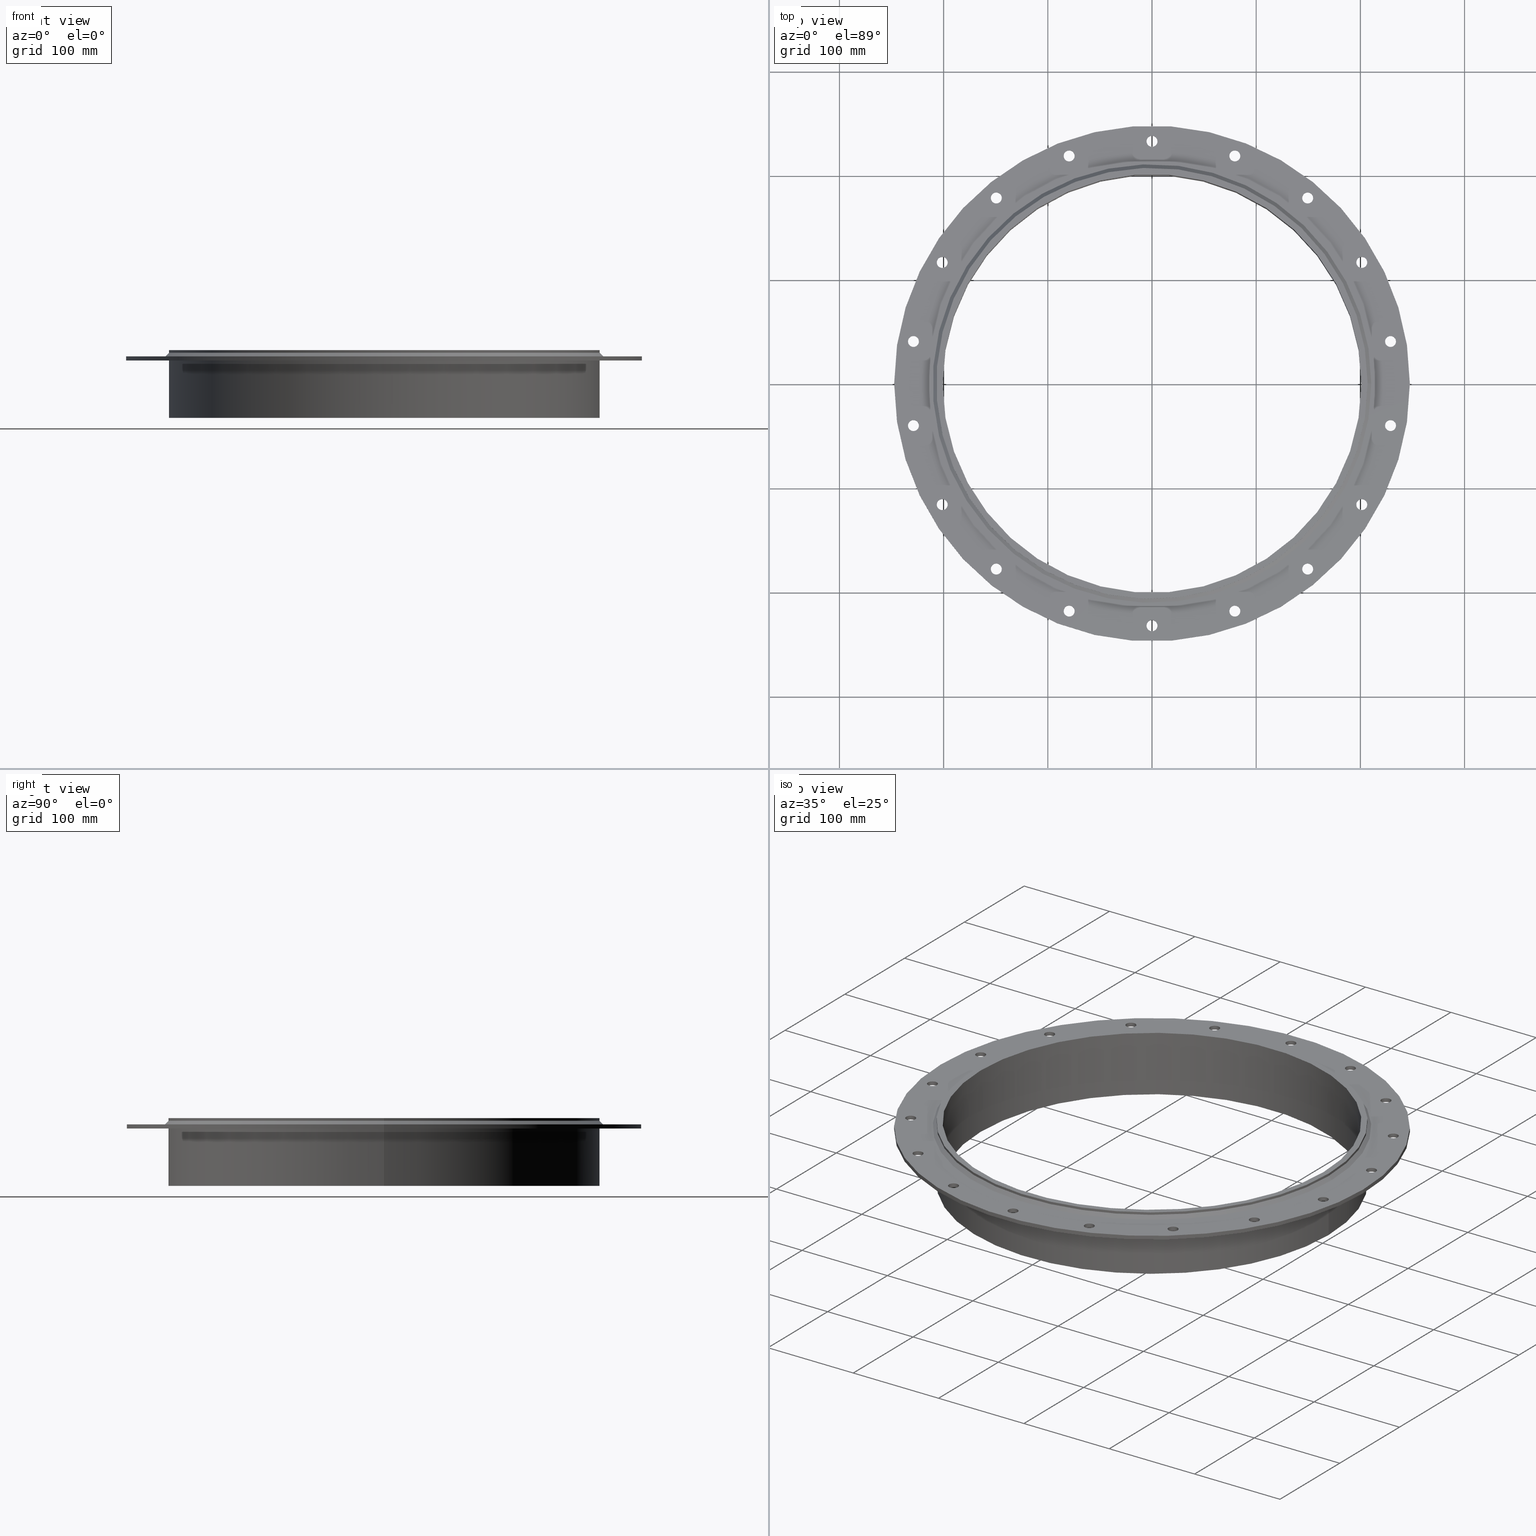
[diagram: canonical four-view strip — front | top / right | iso, engineering-drawing reading convention]
A machine part, canonical four-view strip (front | top / right | iso — engineering-drawing reading convention). The complete STEP part file that produces these views, byte-faithful:
ISO-10303-21;
HEADER;
/****************************************************************
 * Generated by software with PDElib inside                    *
 * PDElib Version v51a, created Wed 11/30/2011                  *
 * ITI Transcendata (http://www.transcendata.com/)              *
 ****************************************************************/
FILE_DESCRIPTION((''),'2;1');
FILE_NAME('C:\\Users\\se-mareng\\Desktop\\RTD\\SLF_\\step\\SLFRS400.stp','2017-02-08T07:43:10',('se-mareng'),(''),'Autodesk Inventor 2013','Autodesk Inventor 2013','');
FILE_SCHEMA(('AUTOMOTIVE_DESIGN { 1 0 10303 214 1 1 1 1 }'));
ENDSEC;
DATA;
#5=APPLICATION_CONTEXT('automotive design');
#6=APPLICATION_PROTOCOL_DEFINITION('International Standard','automotive_design',2001,#5);
#7=PRODUCT_CONTEXT('',#5,'mechanical');
#8=PRODUCT('SLFRS400_old','SLFRS400_old',$,(#7));
#9=PRODUCT_RELATED_PRODUCT_CATEGORY('part',$,(#8));
#10=PRODUCT_DEFINITION_FORMATION('',$,#8);
#11=PRODUCT_DEFINITION_CONTEXT('part definition',#5,'design');
#12=PRODUCT_DEFINITION('',$,#10,#11);
#18=(NAMED_UNIT(*)PLANE_ANGLE_UNIT()SI_UNIT($,.RADIAN.));
#19=DIMENSIONAL_EXPONENTS(0.0,0.0,0.0,0.0,0.0,0.0,0.0);
#20=PLANE_ANGLE_MEASURE_WITH_UNIT(PLANE_ANGLE_MEASURE(0.0174532925),#18);
#24=(CONVERSION_BASED_UNIT('DEGREE',#20)NAMED_UNIT(#19)PLANE_ANGLE_UNIT());
#28=(NAMED_UNIT(*)SI_UNIT($,.STERADIAN.)SOLID_ANGLE_UNIT());
#32=(LENGTH_UNIT()NAMED_UNIT(*)SI_UNIT(.MILLI.,.METRE.));
#34=UNCERTAINTY_MEASURE_WITH_UNIT(LENGTH_MEASURE(0.01),#32,'DISTANCE_ACCURACY_VALUE','');
#36=(GEOMETRIC_REPRESENTATION_CONTEXT(3)GLOBAL_UNCERTAINTY_ASSIGNED_CONTEXT((#34))GLOBAL_UNIT_ASSIGNED_CONTEXT((#24,#28,#32))REPRESENTATION_CONTEXT('None','None'));
#37=AXIS2_PLACEMENT_3D('',#38,#39,#40);
#38=CARTESIAN_POINT('',(0.0,0.0,0.0));
#39=DIRECTION('',(0.0,0.0,1.0));
#40=DIRECTION('',(1.0,0.0,0.0));
#41=SHAPE_REPRESENTATION('',(#37),#36);
#42=PRODUCT_DEFINITION_SHAPE('','',#12);
#43=SHAPE_DEFINITION_REPRESENTATION(#42,#41);
#49=(NAMED_UNIT(*)PLANE_ANGLE_UNIT()SI_UNIT($,.RADIAN.));
#50=DIMENSIONAL_EXPONENTS(0.0,0.0,0.0,0.0,0.0,0.0,0.0);
#51=PLANE_ANGLE_MEASURE_WITH_UNIT(PLANE_ANGLE_MEASURE(0.0174532925),#49);
#55=(CONVERSION_BASED_UNIT('DEGREE',#51)NAMED_UNIT(#50)PLANE_ANGLE_UNIT());
#59=(NAMED_UNIT(*)SI_UNIT($,.STERADIAN.)SOLID_ANGLE_UNIT());
#63=(LENGTH_UNIT()NAMED_UNIT(*)SI_UNIT(.MILLI.,.METRE.));
#65=UNCERTAINTY_MEASURE_WITH_UNIT(LENGTH_MEASURE(0.000001),#63,'DISTANCE_ACCURACY_VALUE','');
#67=(GEOMETRIC_REPRESENTATION_CONTEXT(3)GLOBAL_UNCERTAINTY_ASSIGNED_CONTEXT((#65))GLOBAL_UNIT_ASSIGNED_CONTEXT((#55,#59,#63))REPRESENTATION_CONTEXT('','3D'));
#68=CARTESIAN_POINT('',(-149.44811925212042,178.10533302516245,-709.04694011139827));
#69=DIRECTION('',(0.0,0.0,1.0));
#70=DIRECTION('',(1.0,0.0,0.0));
#71=AXIS2_PLACEMENT_3D('',#68,#69,#70);
#72=CYLINDRICAL_SURFACE('',#71,5.25);
#73=CARTESIAN_POINT('',(-154.69811925212045,178.10533302516245,-10.0));
#74=VERTEX_POINT('',#73);
#75=CARTESIAN_POINT('',(-149.44811925212042,178.10533302516245,-10.0));
#76=DIRECTION('',(0.0,0.0,1.0));
#77=DIRECTION('',(1.0,0.0,0.0));
#78=AXIS2_PLACEMENT_3D('',#75,#76,#77);
#79=CIRCLE('',#78,5.25);
#80=EDGE_CURVE('',#74,#74,#79,.T.);
#81=ORIENTED_EDGE('',*,*,#80,.F.);
#82=EDGE_LOOP('',(#81));
#83=FACE_OUTER_BOUND('',#82,.T.);
#84=CARTESIAN_POINT('',(-144.19811925212042,178.10533302516245,-6.000000000000002));
#85=VERTEX_POINT('',#84);
#86=CARTESIAN_POINT('',(-149.44811925212042,178.10533302516245,-5.999999999999943));
#87=DIRECTION('',(0.0,0.0,-1.0));
#88=DIRECTION('',(1.0,0.0,0.0));
#89=AXIS2_PLACEMENT_3D('',#86,#87,#88);
#90=CIRCLE('',#89,5.25);
#91=EDGE_CURVE('',#85,#85,#90,.T.);
#92=ORIENTED_EDGE('',*,*,#91,.F.);
#93=EDGE_LOOP('',(#92));
#94=FACE_BOUND('',#93,.T.);
#95=ADVANCED_FACE('',(#83,#94),#72,.F.);
#96=CARTESIAN_POINT('',(-228.96780257533837,40.373201307561331,-709.04694011139827));
#97=DIRECTION('',(0.0,0.0,1.0));
#98=DIRECTION('',(1.0,0.0,0.0));
#99=AXIS2_PLACEMENT_3D('',#96,#97,#98);
#100=CYLINDRICAL_SURFACE('',#99,5.25);
#101=CARTESIAN_POINT('',(-234.21780257533837,40.373201307561331,-10.0));
#102=VERTEX_POINT('',#101);
#103=CARTESIAN_POINT('',(-228.96780257533837,40.373201307561331,-10.0));
#104=DIRECTION('',(0.0,0.0,1.0));
#105=DIRECTION('',(1.0,0.0,0.0));
#106=AXIS2_PLACEMENT_3D('',#103,#104,#105);
#107=CIRCLE('',#106,5.25);
#108=EDGE_CURVE('',#102,#102,#107,.T.);
#109=ORIENTED_EDGE('',*,*,#108,.F.);
#110=EDGE_LOOP('',(#109));
#111=FACE_OUTER_BOUND('',#110,.T.);
#112=CARTESIAN_POINT('',(-223.7178025753384,40.373201307561331,-6.000000000000002));
#113=VERTEX_POINT('',#112);
#114=CARTESIAN_POINT('',(-228.96780257533837,40.373201307561331,-5.999999999999943));
#115=DIRECTION('',(0.0,0.0,-1.0));
#116=DIRECTION('',(1.0,0.0,0.0));
#117=AXIS2_PLACEMENT_3D('',#114,#115,#116);
#118=CIRCLE('',#117,5.25);
#119=EDGE_CURVE('',#113,#113,#118,.T.);
#120=ORIENTED_EDGE('',*,*,#119,.F.);
#121=EDGE_LOOP('',(#120));
#122=FACE_BOUND('',#121,.T.);
#123=ADVANCED_FACE('',(#111,#122),#100,.F.);
#124=CARTESIAN_POINT('',(-201.3509063798821,-116.24999999999997,-709.04694011139827));
#125=DIRECTION('',(0.0,0.0,1.0));
#126=DIRECTION('',(1.0,0.0,0.0));
#127=AXIS2_PLACEMENT_3D('',#124,#125,#126);
#128=CYLINDRICAL_SURFACE('',#127,5.25);
#129=CARTESIAN_POINT('',(-206.60090637988208,-116.24999999999997,-10.0));
#130=VERTEX_POINT('',#129);
#131=CARTESIAN_POINT('',(-201.3509063798821,-116.24999999999997,-10.0));
#132=DIRECTION('',(0.0,0.0,1.0));
#133=DIRECTION('',(1.0,0.0,0.0));
#134=AXIS2_PLACEMENT_3D('',#131,#132,#133);
#135=CIRCLE('',#134,5.25);
#136=EDGE_CURVE('',#130,#130,#135,.T.);
#137=ORIENTED_EDGE('',*,*,#136,.F.);
#138=EDGE_LOOP('',(#137));
#139=FACE_OUTER_BOUND('',#138,.T.);
#140=CARTESIAN_POINT('',(-196.1009063798821,-116.24999999999997,-6.000000000000002));
#141=VERTEX_POINT('',#140);
#142=CARTESIAN_POINT('',(-201.3509063798821,-116.24999999999997,-5.999999999999943));
#143=DIRECTION('',(0.0,0.0,-1.0));
#144=DIRECTION('',(1.0,0.0,0.0));
#145=AXIS2_PLACEMENT_3D('',#142,#143,#144);
#146=CIRCLE('',#145,5.25);
#147=EDGE_CURVE('',#141,#141,#146,.T.);
#148=ORIENTED_EDGE('',*,*,#147,.F.);
#149=EDGE_LOOP('',(#148));
#150=FACE_BOUND('',#149,.T.);
#151=ADVANCED_FACE('',(#139,#150),#128,.F.);
#152=CARTESIAN_POINT('',(-79.519683323218061,-218.47853433272365,-709.04694011139827));
#153=DIRECTION('',(0.0,0.0,1.0));
#154=DIRECTION('',(1.0,0.0,0.0));
#155=AXIS2_PLACEMENT_3D('',#152,#153,#154);
#156=CYLINDRICAL_SURFACE('',#155,5.25);
#157=CARTESIAN_POINT('',(-84.769683323218061,-218.47853433272365,-10.0));
#158=VERTEX_POINT('',#157);
#159=CARTESIAN_POINT('',(-79.519683323218061,-218.47853433272365,-10.0));
#160=DIRECTION('',(0.0,0.0,1.0));
#161=DIRECTION('',(1.0,0.0,0.0));
#162=AXIS2_PLACEMENT_3D('',#159,#160,#161);
#163=CIRCLE('',#162,5.25);
#164=EDGE_CURVE('',#158,#158,#163,.T.);
#165=ORIENTED_EDGE('',*,*,#164,.F.);
#166=EDGE_LOOP('',(#165));
#167=FACE_OUTER_BOUND('',#166,.T.);
#168=CARTESIAN_POINT('',(-74.269683323218061,-218.47853433272365,-6.000000000000002));
#169=VERTEX_POINT('',#168);
#170=CARTESIAN_POINT('',(-79.519683323218061,-218.47853433272365,-5.999999999999943));
#171=DIRECTION('',(0.0,0.0,-1.0));
#172=DIRECTION('',(1.0,0.0,0.0));
#173=AXIS2_PLACEMENT_3D('',#170,#171,#172);
#174=CIRCLE('',#173,5.25);
#175=EDGE_CURVE('',#169,#169,#174,.T.);
#176=ORIENTED_EDGE('',*,*,#175,.F.);
#177=EDGE_LOOP('',(#176));
#178=FACE_BOUND('',#177,.T.);
#179=ADVANCED_FACE('',(#167,#178),#156,.F.);
#180=CARTESIAN_POINT('',(79.519683323217947,-218.47853433272365,-709.04694011139827));
#181=DIRECTION('',(0.0,0.0,1.0));
#182=DIRECTION('',(1.0,0.0,0.0));
#183=AXIS2_PLACEMENT_3D('',#180,#181,#182);
#184=CYLINDRICAL_SURFACE('',#183,5.25);
#185=CARTESIAN_POINT('',(74.269683323217947,-218.47853433272365,-10.0));
#186=VERTEX_POINT('',#185);
#187=CARTESIAN_POINT('',(79.519683323217947,-218.47853433272365,-10.0));
#188=DIRECTION('',(0.0,0.0,1.0));
#189=DIRECTION('',(1.0,0.0,0.0));
#190=AXIS2_PLACEMENT_3D('',#187,#188,#189);
#191=CIRCLE('',#190,5.25);
#192=EDGE_CURVE('',#186,#186,#191,.T.);
#193=ORIENTED_EDGE('',*,*,#192,.F.);
#194=EDGE_LOOP('',(#193));
#195=FACE_OUTER_BOUND('',#194,.T.);
#196=CARTESIAN_POINT('',(84.769683323217947,-218.47853433272365,-6.000000000000002));
#197=VERTEX_POINT('',#196);
#198=CARTESIAN_POINT('',(79.519683323217947,-218.47853433272365,-5.999999999999943));
#199=DIRECTION('',(0.0,0.0,-1.0));
#200=DIRECTION('',(1.0,0.0,0.0));
#201=AXIS2_PLACEMENT_3D('',#198,#199,#200);
#202=CIRCLE('',#201,5.25);
#203=EDGE_CURVE('',#197,#197,#202,.T.);
#204=ORIENTED_EDGE('',*,*,#203,.F.);
#205=EDGE_LOOP('',(#204));
#206=FACE_BOUND('',#205,.T.);
#207=ADVANCED_FACE('',(#195,#206),#184,.F.);
#208=CARTESIAN_POINT('',(201.35090637988202,-116.25000000000014,-709.04694011139827));
#209=DIRECTION('',(0.0,0.0,1.0));
#210=DIRECTION('',(1.0,0.0,0.0));
#211=AXIS2_PLACEMENT_3D('',#208,#209,#210);
#212=CYLINDRICAL_SURFACE('',#211,5.25);
#213=CARTESIAN_POINT('',(196.10090637988205,-116.25000000000014,-10.0));
#214=VERTEX_POINT('',#213);
#215=CARTESIAN_POINT('',(201.35090637988202,-116.25000000000014,-10.0));
#216=DIRECTION('',(0.0,0.0,1.0));
#217=DIRECTION('',(1.0,0.0,0.0));
#218=AXIS2_PLACEMENT_3D('',#215,#216,#217);
#219=CIRCLE('',#218,5.25);
#220=EDGE_CURVE('',#214,#214,#219,.T.);
#221=ORIENTED_EDGE('',*,*,#220,.F.);
#222=EDGE_LOOP('',(#221));
#223=FACE_OUTER_BOUND('',#222,.T.);
#224=CARTESIAN_POINT('',(206.60090637988202,-116.25000000000014,-6.000000000000002));
#225=VERTEX_POINT('',#224);
#226=CARTESIAN_POINT('',(201.35090637988202,-116.25000000000014,-5.999999999999943));
#227=DIRECTION('',(0.0,0.0,-1.0));
#228=DIRECTION('',(1.0,0.0,0.0));
#229=AXIS2_PLACEMENT_3D('',#226,#227,#228);
#230=CIRCLE('',#229,5.25);
#231=EDGE_CURVE('',#225,#225,#230,.T.);
#232=ORIENTED_EDGE('',*,*,#231,.F.);
#233=EDGE_LOOP('',(#232));
#234=FACE_BOUND('',#233,.T.);
#235=ADVANCED_FACE('',(#223,#234),#212,.F.);
#236=CARTESIAN_POINT('',(228.96780257533837,40.373201307561246,-709.04694011139827));
#237=DIRECTION('',(0.0,0.0,1.0));
#238=DIRECTION('',(1.0,0.0,0.0));
#239=AXIS2_PLACEMENT_3D('',#236,#237,#238);
#240=CYLINDRICAL_SURFACE('',#239,5.25);
#241=CARTESIAN_POINT('',(223.7178025753384,40.373201307561246,-10.0));
#242=VERTEX_POINT('',#241);
#243=CARTESIAN_POINT('',(228.96780257533837,40.373201307561246,-10.0));
#244=DIRECTION('',(0.0,0.0,1.0));
#245=DIRECTION('',(1.0,0.0,0.0));
#246=AXIS2_PLACEMENT_3D('',#243,#244,#245);
#247=CIRCLE('',#246,5.25);
#248=EDGE_CURVE('',#242,#242,#247,.T.);
#249=ORIENTED_EDGE('',*,*,#248,.F.);
#250=EDGE_LOOP('',(#249));
#251=FACE_OUTER_BOUND('',#250,.T.);
#252=CARTESIAN_POINT('',(234.21780257533837,40.373201307561246,-6.000000000000002));
#253=VERTEX_POINT('',#252);
#254=CARTESIAN_POINT('',(228.96780257533837,40.373201307561246,-5.999999999999943));
#255=DIRECTION('',(0.0,0.0,-1.0));
#256=DIRECTION('',(1.0,0.0,0.0));
#257=AXIS2_PLACEMENT_3D('',#254,#255,#256);
#258=CIRCLE('',#257,5.25);
#259=EDGE_CURVE('',#253,#253,#258,.T.);
#260=ORIENTED_EDGE('',*,*,#259,.F.);
#261=EDGE_LOOP('',(#260));
#262=FACE_BOUND('',#261,.T.);
#263=ADVANCED_FACE('',(#251,#262),#240,.F.);
#264=CARTESIAN_POINT('',(149.44811925212042,178.10533302516234,-709.04694011139827));
#265=DIRECTION('',(0.0,0.0,1.0));
#266=DIRECTION('',(1.0,0.0,0.0));
#267=AXIS2_PLACEMENT_3D('',#264,#265,#266);
#268=CYLINDRICAL_SURFACE('',#267,5.25);
#269=CARTESIAN_POINT('',(144.19811925212042,178.10533302516234,-10.0));
#270=VERTEX_POINT('',#269);
#271=CARTESIAN_POINT('',(149.44811925212042,178.10533302516234,-10.0));
#272=DIRECTION('',(0.0,0.0,1.0));
#273=DIRECTION('',(1.0,0.0,0.0));
#274=AXIS2_PLACEMENT_3D('',#271,#272,#273);
#275=CIRCLE('',#274,5.25);
#276=EDGE_CURVE('',#270,#270,#275,.T.);
#277=ORIENTED_EDGE('',*,*,#276,.F.);
#278=EDGE_LOOP('',(#277));
#279=FACE_OUTER_BOUND('',#278,.T.);
#280=CARTESIAN_POINT('',(154.69811925212045,178.10533302516234,-6.000000000000002));
#281=VERTEX_POINT('',#280);
#282=CARTESIAN_POINT('',(149.44811925212042,178.10533302516234,-5.999999999999943));
#283=DIRECTION('',(0.0,0.0,-1.0));
#284=DIRECTION('',(1.0,0.0,0.0));
#285=AXIS2_PLACEMENT_3D('',#282,#283,#284);
#286=CIRCLE('',#285,5.25);
#287=EDGE_CURVE('',#281,#281,#286,.T.);
#288=ORIENTED_EDGE('',*,*,#287,.F.);
#289=EDGE_LOOP('',(#288));
#290=FACE_BOUND('',#289,.T.);
#291=ADVANCED_FACE('',(#279,#290),#268,.F.);
#292=CARTESIAN_POINT('',(0.0,232.5,-709.04694011139827));
#293=DIRECTION('',(0.0,0.0,1.0));
#294=DIRECTION('',(1.0,0.0,0.0));
#295=AXIS2_PLACEMENT_3D('',#292,#293,#294);
#296=CYLINDRICAL_SURFACE('',#295,5.25);
#297=CARTESIAN_POINT('',(-5.25,232.5,-10.0));
#298=VERTEX_POINT('',#297);
#299=CARTESIAN_POINT('',(0.0,232.5,-10.0));
#300=DIRECTION('',(0.0,0.0,1.0));
#301=DIRECTION('',(1.0,0.0,0.0));
#302=AXIS2_PLACEMENT_3D('',#299,#300,#301);
#303=CIRCLE('',#302,5.25);
#304=EDGE_CURVE('',#298,#298,#303,.T.);
#305=ORIENTED_EDGE('',*,*,#304,.F.);
#306=EDGE_LOOP('',(#305));
#307=FACE_OUTER_BOUND('',#306,.T.);
#308=CARTESIAN_POINT('',(5.25,232.5,-6.000000000000002));
#309=VERTEX_POINT('',#308);
#310=CARTESIAN_POINT('',(0.0,232.5,-5.999999999999943));
#311=DIRECTION('',(0.0,0.0,-1.0));
#312=DIRECTION('',(1.0,0.0,0.0));
#313=AXIS2_PLACEMENT_3D('',#310,#311,#312);
#314=CIRCLE('',#313,5.25);
#315=EDGE_CURVE('',#309,#309,#314,.T.);
#316=ORIENTED_EDGE('',*,*,#315,.F.);
#317=EDGE_LOOP('',(#316));
#318=FACE_BOUND('',#317,.T.);
#319=ADVANCED_FACE('',(#307,#318),#296,.F.);
#320=CARTESIAN_POINT('',(79.519683323218118,218.47853433272365,-709.04694011139827));
#321=DIRECTION('',(0.0,0.0,1.0));
#322=DIRECTION('',(1.0,0.0,0.0));
#323=AXIS2_PLACEMENT_3D('',#320,#321,#322);
#324=CYLINDRICAL_SURFACE('',#323,5.25);
#325=CARTESIAN_POINT('',(74.269683323218118,218.47853433272365,-10.0));
#326=VERTEX_POINT('',#325);
#327=CARTESIAN_POINT('',(79.519683323218118,218.47853433272365,-10.0));
#328=DIRECTION('',(0.0,0.0,1.0));
#329=DIRECTION('',(1.0,0.0,0.0));
#330=AXIS2_PLACEMENT_3D('',#327,#328,#329);
#331=CIRCLE('',#330,5.25);
#332=EDGE_CURVE('',#326,#326,#331,.T.);
#333=ORIENTED_EDGE('',*,*,#332,.F.);
#334=EDGE_LOOP('',(#333));
#335=FACE_OUTER_BOUND('',#334,.T.);
#336=CARTESIAN_POINT('',(84.769683323218118,218.47853433272365,-6.000000000000002));
#337=VERTEX_POINT('',#336);
#338=CARTESIAN_POINT('',(79.519683323218118,218.47853433272365,-5.999999999999943));
#339=DIRECTION('',(0.0,0.0,-1.0));
#340=DIRECTION('',(1.0,0.0,0.0));
#341=AXIS2_PLACEMENT_3D('',#338,#339,#340);
#342=CIRCLE('',#341,5.25);
#343=EDGE_CURVE('',#337,#337,#342,.T.);
#344=ORIENTED_EDGE('',*,*,#343,.F.);
#345=EDGE_LOOP('',(#344));
#346=FACE_BOUND('',#345,.T.);
#347=ADVANCED_FACE('',(#335,#346),#324,.F.);
#348=CARTESIAN_POINT('',(201.35090637988202,116.25000000000006,-709.04694011139827));
#349=DIRECTION('',(0.0,0.0,1.0));
#350=DIRECTION('',(1.0,0.0,0.0));
#351=AXIS2_PLACEMENT_3D('',#348,#349,#350);
#352=CYLINDRICAL_SURFACE('',#351,5.25);
#353=CARTESIAN_POINT('',(196.10090637988205,116.25000000000006,-10.0));
#354=VERTEX_POINT('',#353);
#355=CARTESIAN_POINT('',(201.35090637988202,116.25000000000006,-10.0));
#356=DIRECTION('',(0.0,0.0,1.0));
#357=DIRECTION('',(1.0,0.0,0.0));
#358=AXIS2_PLACEMENT_3D('',#355,#356,#357);
#359=CIRCLE('',#358,5.25);
#360=EDGE_CURVE('',#354,#354,#359,.T.);
#361=ORIENTED_EDGE('',*,*,#360,.F.);
#362=EDGE_LOOP('',(#361));
#363=FACE_OUTER_BOUND('',#362,.T.);
#364=CARTESIAN_POINT('',(206.60090637988202,116.25000000000006,-6.000000000000002));
#365=VERTEX_POINT('',#364);
#366=CARTESIAN_POINT('',(201.35090637988202,116.25000000000006,-5.999999999999943));
#367=DIRECTION('',(0.0,0.0,-1.0));
#368=DIRECTION('',(1.0,0.0,0.0));
#369=AXIS2_PLACEMENT_3D('',#366,#367,#368);
#370=CIRCLE('',#369,5.25);
#371=EDGE_CURVE('',#365,#365,#370,.T.);
#372=ORIENTED_EDGE('',*,*,#371,.F.);
#373=EDGE_LOOP('',(#372));
#374=FACE_BOUND('',#373,.T.);
#375=ADVANCED_FACE('',(#363,#374),#352,.F.);
#376=CARTESIAN_POINT('',(228.96780257533837,-40.373201307561295,-709.04694011139827));
#377=DIRECTION('',(0.0,0.0,1.0));
#378=DIRECTION('',(1.0,0.0,0.0));
#379=AXIS2_PLACEMENT_3D('',#376,#377,#378);
#380=CYLINDRICAL_SURFACE('',#379,5.25);
#381=CARTESIAN_POINT('',(223.7178025753384,-40.373201307561295,-10.0));
#382=VERTEX_POINT('',#381);
#383=CARTESIAN_POINT('',(228.96780257533837,-40.373201307561295,-10.0));
#384=DIRECTION('',(0.0,0.0,1.0));
#385=DIRECTION('',(1.0,0.0,0.0));
#386=AXIS2_PLACEMENT_3D('',#383,#384,#385);
#387=CIRCLE('',#386,5.25);
#388=EDGE_CURVE('',#382,#382,#387,.T.);
#389=ORIENTED_EDGE('',*,*,#388,.F.);
#390=EDGE_LOOP('',(#389));
#391=FACE_OUTER_BOUND('',#390,.T.);
#392=CARTESIAN_POINT('',(234.21780257533837,-40.373201307561295,-6.000000000000002));
#393=VERTEX_POINT('',#392);
#394=CARTESIAN_POINT('',(228.96780257533837,-40.373201307561295,-5.999999999999943));
#395=DIRECTION('',(0.0,0.0,-1.0));
#396=DIRECTION('',(1.0,0.0,0.0));
#397=AXIS2_PLACEMENT_3D('',#394,#395,#396);
#398=CIRCLE('',#397,5.25);
#399=EDGE_CURVE('',#393,#393,#398,.T.);
#400=ORIENTED_EDGE('',*,*,#399,.F.);
#401=EDGE_LOOP('',(#400));
#402=FACE_BOUND('',#401,.T.);
#403=ADVANCED_FACE('',(#391,#402),#380,.F.);
#404=CARTESIAN_POINT('',(149.44811925212042,-178.10533302516245,-709.04694011139827));
#405=DIRECTION('',(0.0,0.0,1.0));
#406=DIRECTION('',(1.0,0.0,0.0));
#407=AXIS2_PLACEMENT_3D('',#404,#405,#406);
#408=CYLINDRICAL_SURFACE('',#407,5.25);
#409=CARTESIAN_POINT('',(144.19811925212042,-178.10533302516245,-10.0));
#410=VERTEX_POINT('',#409);
#411=CARTESIAN_POINT('',(149.44811925212042,-178.10533302516245,-10.0));
#412=DIRECTION('',(0.0,0.0,1.0));
#413=DIRECTION('',(1.0,0.0,0.0));
#414=AXIS2_PLACEMENT_3D('',#411,#412,#413);
#415=CIRCLE('',#414,5.25);
#416=EDGE_CURVE('',#410,#410,#415,.T.);
#417=ORIENTED_EDGE('',*,*,#416,.F.);
#418=EDGE_LOOP('',(#417));
#419=FACE_OUTER_BOUND('',#418,.T.);
#420=CARTESIAN_POINT('',(154.69811925212045,-178.10533302516245,-6.000000000000002));
#421=VERTEX_POINT('',#420);
#422=CARTESIAN_POINT('',(149.44811925212042,-178.10533302516245,-5.999999999999943));
#423=DIRECTION('',(0.0,0.0,-1.0));
#424=DIRECTION('',(1.0,0.0,0.0));
#425=AXIS2_PLACEMENT_3D('',#422,#423,#424);
#426=CIRCLE('',#425,5.25);
#427=EDGE_CURVE('',#421,#421,#426,.T.);
#428=ORIENTED_EDGE('',*,*,#427,.F.);
#429=EDGE_LOOP('',(#428));
#430=FACE_BOUND('',#429,.T.);
#431=ADVANCED_FACE('',(#419,#430),#408,.F.);
#432=CARTESIAN_POINT('',(-2.664535E-014,-232.5,-709.04694011139827));
#433=DIRECTION('',(0.0,0.0,1.0));
#434=DIRECTION('',(1.0,0.0,0.0));
#435=AXIS2_PLACEMENT_3D('',#432,#433,#434);
#436=CYLINDRICAL_SURFACE('',#435,5.25);
#437=CARTESIAN_POINT('',(-5.250000000000027,-232.5,-10.0));
#438=VERTEX_POINT('',#437);
#439=CARTESIAN_POINT('',(-2.664535E-014,-232.5,-10.0));
#440=DIRECTION('',(0.0,0.0,1.0));
#441=DIRECTION('',(1.0,0.0,0.0));
#442=AXIS2_PLACEMENT_3D('',#439,#440,#441);
#443=CIRCLE('',#442,5.25);
#444=EDGE_CURVE('',#438,#438,#443,.T.);
#445=ORIENTED_EDGE('',*,*,#444,.F.);
#446=EDGE_LOOP('',(#445));
#447=FACE_OUTER_BOUND('',#446,.T.);
#448=CARTESIAN_POINT('',(5.249999999999973,-232.5,-6.000000000000002));
#449=VERTEX_POINT('',#448);
#450=CARTESIAN_POINT('',(-2.664535E-014,-232.5,-5.999999999999943));
#451=DIRECTION('',(0.0,0.0,-1.0));
#452=DIRECTION('',(1.0,0.0,0.0));
#453=AXIS2_PLACEMENT_3D('',#450,#451,#452);
#454=CIRCLE('',#453,5.25);
#455=EDGE_CURVE('',#449,#449,#454,.T.);
#456=ORIENTED_EDGE('',*,*,#455,.F.);
#457=EDGE_LOOP('',(#456));
#458=FACE_BOUND('',#457,.T.);
#459=ADVANCED_FACE('',(#447,#458),#436,.F.);
#460=CARTESIAN_POINT('',(-149.44811925212042,-178.10533302516237,-709.04694011139827));
#461=DIRECTION('',(0.0,0.0,1.0));
#462=DIRECTION('',(1.0,0.0,0.0));
#463=AXIS2_PLACEMENT_3D('',#460,#461,#462);
#464=CYLINDRICAL_SURFACE('',#463,5.25);
#465=CARTESIAN_POINT('',(-154.69811925212045,-178.10533302516237,-10.0));
#466=VERTEX_POINT('',#465);
#467=CARTESIAN_POINT('',(-149.44811925212042,-178.10533302516237,-10.0));
#468=DIRECTION('',(0.0,0.0,1.0));
#469=DIRECTION('',(1.0,0.0,0.0));
#470=AXIS2_PLACEMENT_3D('',#467,#468,#469);
#471=CIRCLE('',#470,5.25);
#472=EDGE_CURVE('',#466,#466,#471,.T.);
#473=ORIENTED_EDGE('',*,*,#472,.F.);
#474=EDGE_LOOP('',(#473));
#475=FACE_OUTER_BOUND('',#474,.T.);
#476=CARTESIAN_POINT('',(-144.19811925212042,-178.10533302516237,-6.000000000000002));
#477=VERTEX_POINT('',#476);
#478=CARTESIAN_POINT('',(-149.44811925212042,-178.10533302516237,-5.999999999999943));
#479=DIRECTION('',(0.0,0.0,-1.0));
#480=DIRECTION('',(1.0,0.0,0.0));
#481=AXIS2_PLACEMENT_3D('',#478,#479,#480);
#482=CIRCLE('',#481,5.25);
#483=EDGE_CURVE('',#477,#477,#482,.T.);
#484=ORIENTED_EDGE('',*,*,#483,.F.);
#485=EDGE_LOOP('',(#484));
#486=FACE_BOUND('',#485,.T.);
#487=ADVANCED_FACE('',(#475,#486),#464,.F.);
#488=CARTESIAN_POINT('',(-228.96780257533837,-40.373201307561295,-709.04694011139827));
#489=DIRECTION('',(0.0,0.0,1.0));
#490=DIRECTION('',(1.0,0.0,0.0));
#491=AXIS2_PLACEMENT_3D('',#488,#489,#490);
#492=CYLINDRICAL_SURFACE('',#491,5.25);
#493=CARTESIAN_POINT('',(-234.21780257533837,-40.373201307561295,-10.0));
#494=VERTEX_POINT('',#493);
#495=CARTESIAN_POINT('',(-228.96780257533837,-40.373201307561295,-10.0));
#496=DIRECTION('',(0.0,0.0,1.0));
#497=DIRECTION('',(1.0,0.0,0.0));
#498=AXIS2_PLACEMENT_3D('',#495,#496,#497);
#499=CIRCLE('',#498,5.25);
#500=EDGE_CURVE('',#494,#494,#499,.T.);
#501=ORIENTED_EDGE('',*,*,#500,.F.);
#502=EDGE_LOOP('',(#501));
#503=FACE_OUTER_BOUND('',#502,.T.);
#504=CARTESIAN_POINT('',(-223.7178025753384,-40.373201307561295,-6.000000000000002));
#505=VERTEX_POINT('',#504);
#506=CARTESIAN_POINT('',(-228.96780257533837,-40.373201307561295,-5.999999999999943));
#507=DIRECTION('',(0.0,0.0,-1.0));
#508=DIRECTION('',(1.0,0.0,0.0));
#509=AXIS2_PLACEMENT_3D('',#506,#507,#508);
#510=CIRCLE('',#509,5.25);
#511=EDGE_CURVE('',#505,#505,#510,.T.);
#512=ORIENTED_EDGE('',*,*,#511,.F.);
#513=EDGE_LOOP('',(#512));
#514=FACE_BOUND('',#513,.T.);
#515=ADVANCED_FACE('',(#503,#514),#492,.F.);
#516=CARTESIAN_POINT('',(-201.35090637988202,116.25000000000006,-709.04694011139827));
#517=DIRECTION('',(0.0,0.0,1.0));
#518=DIRECTION('',(1.0,0.0,0.0));
#519=AXIS2_PLACEMENT_3D('',#516,#517,#518);
#520=CYLINDRICAL_SURFACE('',#519,5.25);
#521=CARTESIAN_POINT('',(-206.60090637988202,116.25000000000006,-10.0));
#522=VERTEX_POINT('',#521);
#523=CARTESIAN_POINT('',(-201.35090637988202,116.25000000000006,-10.0));
#524=DIRECTION('',(0.0,0.0,1.0));
#525=DIRECTION('',(1.0,0.0,0.0));
#526=AXIS2_PLACEMENT_3D('',#523,#524,#525);
#527=CIRCLE('',#526,5.25);
#528=EDGE_CURVE('',#522,#522,#527,.T.);
#529=ORIENTED_EDGE('',*,*,#528,.F.);
#530=EDGE_LOOP('',(#529));
#531=FACE_OUTER_BOUND('',#530,.T.);
#532=CARTESIAN_POINT('',(-196.10090637988205,116.25000000000006,-6.000000000000002));
#533=VERTEX_POINT('',#532);
#534=CARTESIAN_POINT('',(-201.35090637988202,116.25000000000006,-5.999999999999943));
#535=DIRECTION('',(0.0,0.0,-1.0));
#536=DIRECTION('',(1.0,0.0,0.0));
#537=AXIS2_PLACEMENT_3D('',#534,#535,#536);
#538=CIRCLE('',#537,5.25);
#539=EDGE_CURVE('',#533,#533,#538,.T.);
#540=ORIENTED_EDGE('',*,*,#539,.F.);
#541=EDGE_LOOP('',(#540));
#542=FACE_BOUND('',#541,.T.);
#543=ADVANCED_FACE('',(#531,#542),#520,.F.);
#544=CARTESIAN_POINT('',(-79.519683323217961,218.47853433272365,-709.04694011139827));
#545=DIRECTION('',(0.0,0.0,1.0));
#546=DIRECTION('',(1.0,0.0,0.0));
#547=AXIS2_PLACEMENT_3D('',#544,#545,#546);
#548=CYLINDRICAL_SURFACE('',#547,5.25);
#549=CARTESIAN_POINT('',(-84.769683323217961,218.47853433272365,-10.0));
#550=VERTEX_POINT('',#549);
#551=CARTESIAN_POINT('',(-79.519683323217961,218.47853433272365,-10.0));
#552=DIRECTION('',(0.0,0.0,1.0));
#553=DIRECTION('',(1.0,0.0,0.0));
#554=AXIS2_PLACEMENT_3D('',#551,#552,#553);
#555=CIRCLE('',#554,5.25);
#556=EDGE_CURVE('',#550,#550,#555,.T.);
#557=ORIENTED_EDGE('',*,*,#556,.F.);
#558=EDGE_LOOP('',(#557));
#559=FACE_OUTER_BOUND('',#558,.T.);
#560=CARTESIAN_POINT('',(-74.269683323217961,218.47853433272365,-6.000000000000002));
#561=VERTEX_POINT('',#560);
#562=CARTESIAN_POINT('',(-79.519683323217961,218.47853433272365,-5.999999999999943));
#563=DIRECTION('',(0.0,0.0,-1.0));
#564=DIRECTION('',(1.0,0.0,0.0));
#565=AXIS2_PLACEMENT_3D('',#562,#563,#564);
#566=CIRCLE('',#565,5.25);
#567=EDGE_CURVE('',#561,#561,#566,.T.);
#568=ORIENTED_EDGE('',*,*,#567,.F.);
#569=EDGE_LOOP('',(#568));
#570=FACE_BOUND('',#569,.T.);
#571=ADVANCED_FACE('',(#559,#570),#548,.F.);
#572=CARTESIAN_POINT('',(0.0,0.0,-4.25));
#573=DIRECTION('',(0.0,0.0,-1.0));
#574=DIRECTION('',(-1.0,0.0,0.0));
#575=AXIS2_PLACEMENT_3D('',#572,#573,#574);
#576=CONICAL_SURFACE('',#575,208.75000000000011,45.000000000000099);
#577=CARTESIAN_POINT('',(210.50000000000011,2.577882E-014,-6.000000000000002));
#578=VERTEX_POINT('',#577);
#579=CARTESIAN_POINT('',(0.0,0.0,-6.000000000000002));
#580=DIRECTION('',(0.0,0.0,1.0));
#581=DIRECTION('',(-1.0,0.0,0.0));
#582=AXIS2_PLACEMENT_3D('',#579,#580,#581);
#583=CIRCLE('',#582,210.50000000000011);
#584=EDGE_CURVE('',#578,#578,#583,.T.);
#585=ORIENTED_EDGE('',*,*,#584,.T.);
#586=EDGE_LOOP('',(#585));
#587=FACE_OUTER_BOUND('',#586,.T.);
#588=CARTESIAN_POINT('',(207.00000000000011,-2.535019E-014,-2.5));
#589=VERTEX_POINT('',#588);
#590=CARTESIAN_POINT('',(0.0,0.0,-2.5));
#591=DIRECTION('',(0.0,0.0,-1.0));
#592=DIRECTION('',(-1.0,0.0,0.0));
#593=AXIS2_PLACEMENT_3D('',#590,#591,#592);
#594=CIRCLE('',#593,207.00000000000011);
#595=EDGE_CURVE('',#589,#589,#594,.T.);
#596=ORIENTED_EDGE('',*,*,#595,.T.);
#597=EDGE_LOOP('',(#596));
#598=FACE_BOUND('',#597,.T.);
#599=ADVANCED_FACE('',(#587,#598),#576,.T.);
#600=CARTESIAN_POINT('',(-1.783719E-014,0.0,-6.000000000000002));
#601=DIRECTION('',(0.0,0.0,1.0));
#602=DIRECTION('',(1.0,0.0,0.0));
#603=AXIS2_PLACEMENT_3D('',#600,#601,#602);
#604=PLANE('',#603);
#605=CARTESIAN_POINT('',(247.5,3.031001E-014,-6.000000000000002));
#606=VERTEX_POINT('',#605);
#607=CARTESIAN_POINT('',(0.0,0.0,-6.000000000000002));
#608=DIRECTION('',(0.0,0.0,1.0));
#609=DIRECTION('',(-1.0,0.0,0.0));
#610=AXIS2_PLACEMENT_3D('',#607,#608,#609);
#611=CIRCLE('',#610,247.5);
#612=EDGE_CURVE('',#606,#606,#611,.T.);
#613=ORIENTED_EDGE('',*,*,#612,.T.);
#614=EDGE_LOOP('',(#613));
#615=FACE_OUTER_BOUND('',#614,.T.);
#616=ORIENTED_EDGE('',*,*,#91,.T.);
#617=EDGE_LOOP('',(#616));
#618=FACE_BOUND('',#617,.T.);
#619=ORIENTED_EDGE('',*,*,#119,.T.);
#620=EDGE_LOOP('',(#619));
#621=FACE_BOUND('',#620,.T.);
#622=ORIENTED_EDGE('',*,*,#147,.T.);
#623=EDGE_LOOP('',(#622));
#624=FACE_BOUND('',#623,.T.);
#625=ORIENTED_EDGE('',*,*,#175,.T.);
#626=EDGE_LOOP('',(#625));
#627=FACE_BOUND('',#626,.T.);
#628=ORIENTED_EDGE('',*,*,#203,.T.);
#629=EDGE_LOOP('',(#628));
#630=FACE_BOUND('',#629,.T.);
#631=ORIENTED_EDGE('',*,*,#231,.T.);
#632=EDGE_LOOP('',(#631));
#633=FACE_BOUND('',#632,.T.);
#634=ORIENTED_EDGE('',*,*,#259,.T.);
#635=EDGE_LOOP('',(#634));
#636=FACE_BOUND('',#635,.T.);
#637=ORIENTED_EDGE('',*,*,#287,.T.);
#638=EDGE_LOOP('',(#637));
#639=FACE_BOUND('',#638,.T.);
#640=ORIENTED_EDGE('',*,*,#315,.T.);
#641=EDGE_LOOP('',(#640));
#642=FACE_BOUND('',#641,.T.);
#643=ORIENTED_EDGE('',*,*,#343,.T.);
#644=EDGE_LOOP('',(#643));
#645=FACE_BOUND('',#644,.T.);
#646=ORIENTED_EDGE('',*,*,#371,.T.);
#647=EDGE_LOOP('',(#646));
#648=FACE_BOUND('',#647,.T.);
#649=ORIENTED_EDGE('',*,*,#399,.T.);
#650=EDGE_LOOP('',(#649));
#651=FACE_BOUND('',#650,.T.);
#652=ORIENTED_EDGE('',*,*,#427,.T.);
#653=EDGE_LOOP('',(#652));
#654=FACE_BOUND('',#653,.T.);
#655=ORIENTED_EDGE('',*,*,#455,.T.);
#656=EDGE_LOOP('',(#655));
#657=FACE_BOUND('',#656,.T.);
#658=ORIENTED_EDGE('',*,*,#483,.T.);
#659=EDGE_LOOP('',(#658));
#660=FACE_BOUND('',#659,.T.);
#661=ORIENTED_EDGE('',*,*,#511,.T.);
#662=EDGE_LOOP('',(#661));
#663=FACE_BOUND('',#662,.T.);
#664=ORIENTED_EDGE('',*,*,#539,.T.);
#665=EDGE_LOOP('',(#664));
#666=FACE_BOUND('',#665,.T.);
#667=ORIENTED_EDGE('',*,*,#567,.T.);
#668=EDGE_LOOP('',(#667));
#669=FACE_BOUND('',#668,.T.);
#670=ORIENTED_EDGE('',*,*,#584,.F.);
#671=EDGE_LOOP('',(#670));
#672=FACE_BOUND('',#671,.T.);
#673=ADVANCED_FACE('',(#615,#618,#621,#624,#627,#630,#633,#636,#639,#642,#645,#648,#651,#654,#657,#660,#663,#666,#669,#672),#604,.T.);
#674=CARTESIAN_POINT('',(0.0,0.0,0.0));
#675=DIRECTION('',(0.0,0.0,-1.0));
#676=DIRECTION('',(-1.0,0.0,0.0));
#677=AXIS2_PLACEMENT_3D('',#674,#675,#676);
#678=CYLINDRICAL_SURFACE('',#677,207.00000000000011);
#679=CARTESIAN_POINT('',(207.00000000000011,2.535019E-014,0.0));
#680=VERTEX_POINT('',#679);
#681=CARTESIAN_POINT('',(0.0,0.0,0.0));
#682=DIRECTION('',(0.0,0.0,-1.0));
#683=DIRECTION('',(-1.0,0.0,0.0));
#684=AXIS2_PLACEMENT_3D('',#681,#682,#683);
#685=CIRCLE('',#684,207.00000000000011);
#686=EDGE_CURVE('',#680,#680,#685,.T.);
#687=ORIENTED_EDGE('',*,*,#686,.T.);
#688=EDGE_LOOP('',(#687));
#689=FACE_OUTER_BOUND('',#688,.T.);
#690=ORIENTED_EDGE('',*,*,#595,.F.);
#691=EDGE_LOOP('',(#690));
#692=FACE_BOUND('',#691,.T.);
#693=ADVANCED_FACE('',(#689,#692),#678,.T.);
#694=CARTESIAN_POINT('',(-1.783719E-014,0.0,-10.0));
#695=DIRECTION('',(0.0,0.0,1.0));
#696=DIRECTION('',(1.0,0.0,0.0));
#697=AXIS2_PLACEMENT_3D('',#694,#695,#696);
#698=PLANE('',#697);
#699=CARTESIAN_POINT('',(247.5,3.031001E-014,-10.0));
#700=VERTEX_POINT('',#699);
#701=CARTESIAN_POINT('',(0.0,0.0,-10.0));
#702=DIRECTION('',(0.0,0.0,-1.0));
#703=DIRECTION('',(-1.0,0.0,0.0));
#704=AXIS2_PLACEMENT_3D('',#701,#702,#703);
#705=CIRCLE('',#704,247.5);
#706=EDGE_CURVE('',#700,#700,#705,.T.);
#707=ORIENTED_EDGE('',*,*,#706,.T.);
#708=EDGE_LOOP('',(#707));
#709=FACE_OUTER_BOUND('',#708,.T.);
#710=ORIENTED_EDGE('',*,*,#80,.T.);
#711=EDGE_LOOP('',(#710));
#712=FACE_BOUND('',#711,.T.);
#713=ORIENTED_EDGE('',*,*,#108,.T.);
#714=EDGE_LOOP('',(#713));
#715=FACE_BOUND('',#714,.T.);
#716=ORIENTED_EDGE('',*,*,#136,.T.);
#717=EDGE_LOOP('',(#716));
#718=FACE_BOUND('',#717,.T.);
#719=ORIENTED_EDGE('',*,*,#164,.T.);
#720=EDGE_LOOP('',(#719));
#721=FACE_BOUND('',#720,.T.);
#722=ORIENTED_EDGE('',*,*,#192,.T.);
#723=EDGE_LOOP('',(#722));
#724=FACE_BOUND('',#723,.T.);
#725=ORIENTED_EDGE('',*,*,#220,.T.);
#726=EDGE_LOOP('',(#725));
#727=FACE_BOUND('',#726,.T.);
#728=ORIENTED_EDGE('',*,*,#248,.T.);
#729=EDGE_LOOP('',(#728));
#730=FACE_BOUND('',#729,.T.);
#731=ORIENTED_EDGE('',*,*,#276,.T.);
#732=EDGE_LOOP('',(#731));
#733=FACE_BOUND('',#732,.T.);
#734=ORIENTED_EDGE('',*,*,#304,.T.);
#735=EDGE_LOOP('',(#734));
#736=FACE_BOUND('',#735,.T.);
#737=ORIENTED_EDGE('',*,*,#332,.T.);
#738=EDGE_LOOP('',(#737));
#739=FACE_BOUND('',#738,.T.);
#740=ORIENTED_EDGE('',*,*,#360,.T.);
#741=EDGE_LOOP('',(#740));
#742=FACE_BOUND('',#741,.T.);
#743=ORIENTED_EDGE('',*,*,#388,.T.);
#744=EDGE_LOOP('',(#743));
#745=FACE_BOUND('',#744,.T.);
#746=ORIENTED_EDGE('',*,*,#416,.T.);
#747=EDGE_LOOP('',(#746));
#748=FACE_BOUND('',#747,.T.);
#749=ORIENTED_EDGE('',*,*,#444,.T.);
#750=EDGE_LOOP('',(#749));
#751=FACE_BOUND('',#750,.T.);
#752=ORIENTED_EDGE('',*,*,#472,.T.);
#753=EDGE_LOOP('',(#752));
#754=FACE_BOUND('',#753,.T.);
#755=ORIENTED_EDGE('',*,*,#500,.T.);
#756=EDGE_LOOP('',(#755));
#757=FACE_BOUND('',#756,.T.);
#758=ORIENTED_EDGE('',*,*,#528,.T.);
#759=EDGE_LOOP('',(#758));
#760=FACE_BOUND('',#759,.T.);
#761=ORIENTED_EDGE('',*,*,#556,.T.);
#762=EDGE_LOOP('',(#761));
#763=FACE_BOUND('',#762,.T.);
#764=CARTESIAN_POINT('',(207.00000000000011,2.535019E-014,-10.0));
#765=VERTEX_POINT('',#764);
#766=CARTESIAN_POINT('',(0.0,0.0,-10.0));
#767=DIRECTION('',(0.0,0.0,-1.0));
#768=DIRECTION('',(-1.0,0.0,0.0));
#769=AXIS2_PLACEMENT_3D('',#766,#767,#768);
#770=CIRCLE('',#769,207.00000000000011);
#771=EDGE_CURVE('',#765,#765,#770,.T.);
#772=ORIENTED_EDGE('',*,*,#771,.F.);
#773=EDGE_LOOP('',(#772));
#774=FACE_BOUND('',#773,.T.);
#775=ADVANCED_FACE('',(#709,#712,#715,#718,#721,#724,#727,#730,#733,#736,#739,#742,#745,#748,#751,#754,#757,#760,#763,#774),#698,.F.);
#776=CARTESIAN_POINT('',(0.0,0.0,-8.0));
#777=DIRECTION('',(0.0,0.0,1.0));
#778=DIRECTION('',(-1.0,0.0,0.0));
#779=AXIS2_PLACEMENT_3D('',#776,#777,#778);
#780=CYLINDRICAL_SURFACE('',#779,247.5);
#781=ORIENTED_EDGE('',*,*,#706,.F.);
#782=EDGE_LOOP('',(#781));
#783=FACE_OUTER_BOUND('',#782,.T.);
#784=ORIENTED_EDGE('',*,*,#612,.F.);
#785=EDGE_LOOP('',(#784));
#786=FACE_BOUND('',#785,.T.);
#787=ADVANCED_FACE('',(#783,#786),#780,.T.);
#788=CARTESIAN_POINT('',(0.0,0.0,-589.08148842074479));
#789=DIRECTION('',(0.0,0.0,1.0));
#790=DIRECTION('',(1.0,0.0,0.0));
#791=AXIS2_PLACEMENT_3D('',#788,#789,#790);
#792=CYLINDRICAL_SURFACE('',#791,201.0);
#793=CARTESIAN_POINT('',(-201.0,-2.461540E-014,-65.0));
#794=VERTEX_POINT('',#793);
#795=CARTESIAN_POINT('',(0.0,0.0,-65.0));
#796=DIRECTION('',(0.0,0.0,1.0));
#797=DIRECTION('',(1.0,0.0,0.0));
#798=AXIS2_PLACEMENT_3D('',#795,#796,#797);
#799=CIRCLE('',#798,201.0);
#800=EDGE_CURVE('',#794,#794,#799,.T.);
#801=ORIENTED_EDGE('',*,*,#800,.F.);
#802=EDGE_LOOP('',(#801));
#803=FACE_OUTER_BOUND('',#802,.T.);
#804=CARTESIAN_POINT('',(201.0,0.0,0.0));
#805=VERTEX_POINT('',#804);
#806=CARTESIAN_POINT('',(0.0,0.0,0.0));
#807=DIRECTION('',(0.0,0.0,-1.0));
#808=DIRECTION('',(1.0,0.0,0.0));
#809=AXIS2_PLACEMENT_3D('',#806,#807,#808);
#810=CIRCLE('',#809,201.0);
#811=EDGE_CURVE('',#805,#805,#810,.T.);
#812=ORIENTED_EDGE('',*,*,#811,.F.);
#813=EDGE_LOOP('',(#812));
#814=FACE_BOUND('',#813,.T.);
#815=ADVANCED_FACE('',(#803,#814),#792,.F.);
#816=CARTESIAN_POINT('',(0.0,0.0,0.0));
#817=DIRECTION('',(0.0,0.0,-1.0));
#818=DIRECTION('',(-1.0,0.0,0.0));
#819=AXIS2_PLACEMENT_3D('',#816,#817,#818);
#820=CYLINDRICAL_SURFACE('',#819,207.00000000000011);
#821=ORIENTED_EDGE('',*,*,#771,.T.);
#822=EDGE_LOOP('',(#821));
#823=FACE_OUTER_BOUND('',#822,.T.);
#824=CARTESIAN_POINT('',(207.00000000000011,2.535019E-014,-65.0));
#825=VERTEX_POINT('',#824);
#826=CARTESIAN_POINT('',(0.0,0.0,-65.0));
#827=DIRECTION('',(0.0,0.0,-1.0));
#828=DIRECTION('',(-1.0,0.0,0.0));
#829=AXIS2_PLACEMENT_3D('',#826,#827,#828);
#830=CIRCLE('',#829,207.00000000000011);
#831=EDGE_CURVE('',#825,#825,#830,.T.);
#832=ORIENTED_EDGE('',*,*,#831,.F.);
#833=EDGE_LOOP('',(#832));
#834=FACE_BOUND('',#833,.T.);
#835=ADVANCED_FACE('',(#823,#834),#820,.T.);
#836=CARTESIAN_POINT('',(-1.126605E-014,4.576765E-015,-65.0));
#837=DIRECTION('',(0.0,0.0,1.0));
#838=DIRECTION('',(1.0,0.0,0.0));
#839=AXIS2_PLACEMENT_3D('',#836,#837,#838);
#840=PLANE('',#839);
#841=ORIENTED_EDGE('',*,*,#831,.T.);
#842=EDGE_LOOP('',(#841));
#843=FACE_OUTER_BOUND('',#842,.T.);
#844=ORIENTED_EDGE('',*,*,#800,.T.);
#845=EDGE_LOOP('',(#844));
#846=FACE_BOUND('',#845,.T.);
#847=ADVANCED_FACE('',(#843,#846),#840,.F.);
#848=CARTESIAN_POINT('',(-1.126605E-014,4.576765E-015,0.0));
#849=DIRECTION('',(0.0,0.0,1.0));
#850=DIRECTION('',(1.0,0.0,0.0));
#851=AXIS2_PLACEMENT_3D('',#848,#849,#850);
#852=PLANE('',#851);
#853=ORIENTED_EDGE('',*,*,#686,.F.);
#854=EDGE_LOOP('',(#853));
#855=FACE_OUTER_BOUND('',#854,.T.);
#856=ORIENTED_EDGE('',*,*,#811,.T.);
#857=EDGE_LOOP('',(#856));
#858=FACE_BOUND('',#857,.T.);
#859=ADVANCED_FACE('',(#855,#858),#852,.T.);
#860=CLOSED_SHELL('',(#95,#123,#151,#179,#207,#235,#263,#291,#319,#347,#375,#403,#431,#459,#487,#515,#543,#571,#599,#673,#693,#775,#787,#815,#835,#847,#859));
#861=MANIFOLD_SOLID_BREP('Solid1',#860);
#862=COLOUR_RGB('',0.800000011920929,0.796078443527222,0.701960802078247);
#863=FILL_AREA_STYLE_COLOUR('',#862);
#864=FILL_AREA_STYLE('',(#863));
#865=SURFACE_STYLE_FILL_AREA(#864);
#866=SURFACE_SIDE_STYLE('',(#865));
#867=SURFACE_STYLE_USAGE(.BOTH.,#866);
#868=PRESENTATION_STYLE_ASSIGNMENT((#867));
#869=STYLED_ITEM('',(#868,#877),#861);
#870=MECHANICAL_DESIGN_GEOMETRIC_PRESENTATION_REPRESENTATION('',(#869),#67);
#871=COLOUR_RGB('204,203,179',0.800000011920929,0.796078443527222,0.701960802078247);
#872=FILL_AREA_STYLE_COLOUR('204,203,179',#871);
#873=FILL_AREA_STYLE('204,203,179',(#872));
#874=SURFACE_STYLE_FILL_AREA(#873);
#875=SURFACE_SIDE_STYLE('204,203,179',(#874));
#876=SURFACE_STYLE_USAGE(.BOTH.,#875);
#877=PRESENTATION_STYLE_ASSIGNMENT((#876));
#878=ADVANCED_BREP_SHAPE_REPRESENTATION('ABSR',(#861),#36);
#879=SHAPE_REPRESENTATION_RELATIONSHIP('SRR','None',#878,#41);
ENDSEC;
END-ISO-10303-21;
